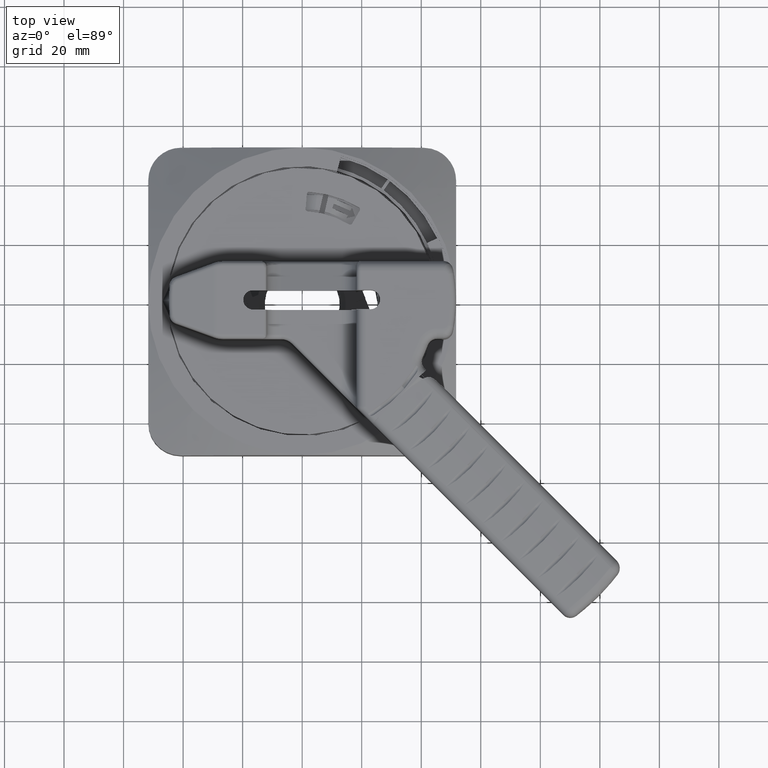
[diagram: clean part render]
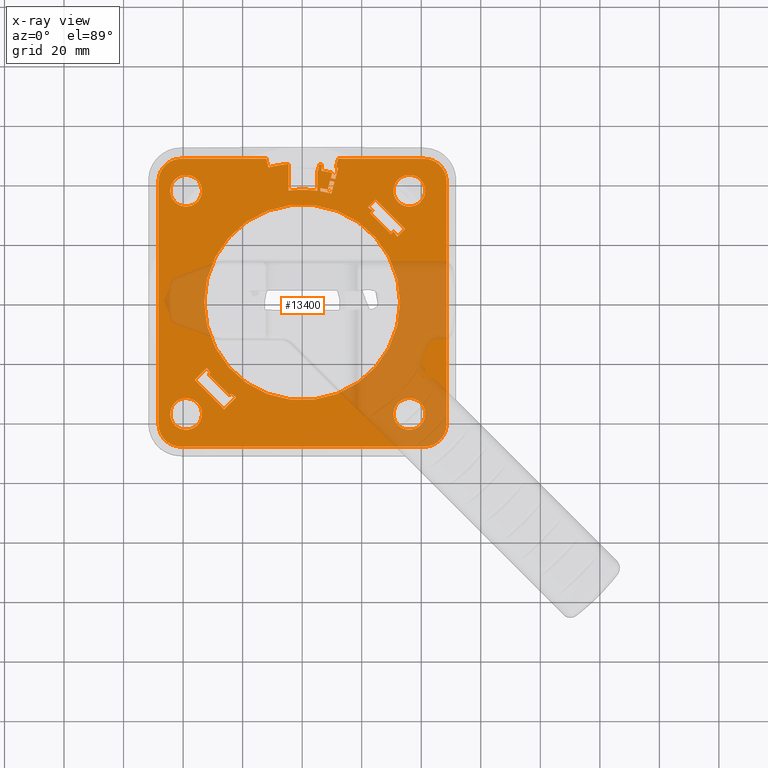
[diagram: x-ray — body ghosted, one internal face saturated and labeled with its STEP entity id]
A machine part, top view, then the same camera in x-ray: the body is ghosted and one INTERNAL B-rep face — a face not visible from any outside direction — is saturated and labeled: STEP entity #13400.
In plain terms, the highlighted planar face has unit normal (0, 0, 1).
Its self-contained STEP definition (entity closure, byte-faithful):
#11014=CARTESIAN_POINT('',(0.E0,0.E0,1.06E-1));
#11015=DIRECTION('',(0.E0,0.E0,-1.E0));
#11016=DIRECTION('',(-1.208053691275E-1,9.926762124630E-1,0.E0));
#11017=AXIS2_PLACEMENT_3D('',#11014,#11015,#11016);
#11022=CARTESIAN_POINT('',(0.E0,0.E0,1.06E-1));
#11023=DIRECTION('',(0.E0,0.E0,-1.E0));
#11024=DIRECTION('',(1.136363636363E-1,9.935224088361E-1,0.E0));
#11025=AXIS2_PLACEMENT_3D('',#11022,#11023,#11024);
#11030=DIRECTION('',(1.218693434058E-1,9.925461516412E-1,0.E0));
#11031=VECTOR('',#11030,7.999999999991E-2);
#11032=CARTESIAN_POINT('',(2.144900443930E-1,1.746881226889E0,1.06E-1));
#11033=LINE('',#11032,#11031);
#11037=CARTESIAN_POINT('',(0.E0,0.E0,1.06E-1));
#11038=DIRECTION('',(0.E0,0.E0,-1.E0));
#11039=DIRECTION('',(1.218693434052E-1,9.925461516413E-1,0.E0));
#11040=AXIS2_PLACEMENT_3D('',#11037,#11038,#11039);
#11045=DIRECTION('',(-1.218693434058E-1,-9.925461516412E-1,0.E0));
#11046=VECTOR('',#11045,8.001977017672E-2);
#11047=CARTESIAN_POINT('',(2.638884449984E-1,1.820978552481E0,1.06E-1));
#11048=LINE('',#11047,#11046);
#11052=CARTESIAN_POINT('',(0.E0,0.E0,1.06E-1));
#11053=DIRECTION('',(0.E0,0.E0,-1.E0));
#11054=DIRECTION('',(1.443957319020E-1,9.895200213278E-1,0.E0));
#11055=AXIS2_PLACEMENT_3D('',#11052,#11053,#11054);
#11060=DIRECTION('',(-2.588190451037E-1,-9.659258262888E-1,0.E0));
#11061=VECTOR('',#11060,7.115389865428E-2);
#11062=CARTESIAN_POINT('',(3.973011915539E-1,1.714570431096E0,1.06E-1));
#11063=LINE('',#11062,#11061);
#11067=DIRECTION('',(9.659258262863E-1,-2.588190451129E-1,0.E0));
#11068=VECTOR('',#11067,6.000000000018E-2);
#11069=CARTESIAN_POINT('',(3.788852074488E-1,1.645841042745E0,1.06E-1));
#11070=LINE('',#11069,#11068);
#11074=DIRECTION('',(2.588190451017E-1,9.659258262893E-1,0.E0));
#11075=VECTOR('',#11074,1.521769232515E-1);
#11076=CARTESIAN_POINT('',(4.368407570262E-1,1.630311900038E0,1.06E-1));
#11077=LINE('',#11076,#11075);
#11081=CARTESIAN_POINT('',(0.E0,0.E0,1.06E-1));
#11082=DIRECTION('',(0.E0,0.E0,1.E0));
#11083=DIRECTION('',(2.588190451025E-1,9.659258262891E-1,0.E0));
#11084=AXIS2_PLACEMENT_3D('',#11081,#11082,#11083);
#11089=DIRECTION('',(2.419218956E-1,9.702957262759E-1,0.E0));
#11090=VECTOR('',#11089,1.169999999998E-1);
#11091=CARTESIAN_POINT('',(4.451362879034E-1,1.785344136348E0,1.06E-1));
#11092=LINE('',#11091,#11090);
#11096=CARTESIAN_POINT('',(0.E0,0.E0,1.06E-1));
#11097=DIRECTION('',(0.E0,0.E0,1.E0));
#11098=DIRECTION('',(2.419218955997E-1,9.702957262760E-1,0.E0));
#11099=AXIS2_PLACEMENT_3D('',#11096,#11097,#11098);
#11104=CARTESIAN_POINT('',(1.61E0,1.6E0,1.06E-1));
#11105=DIRECTION('',(0.E0,0.E0,-1.E0));
#11106=DIRECTION('',(0.E0,1.E0,0.E0));
#11107=AXIS2_PLACEMENT_3D('',#11104,#11105,#11106);
#11112=CARTESIAN_POINT('',(1.61E0,-1.61E0,1.06E-1));
#11113=DIRECTION('',(0.E0,0.E0,-1.E0));
#11114=DIRECTION('',(1.E0,0.E0,0.E0));
#11115=AXIS2_PLACEMENT_3D('',#11112,#11113,#11114);
#11120=CARTESIAN_POINT('',(-1.6E0,-1.61E0,1.06E-1));
#11121=DIRECTION('',(0.E0,0.E0,-1.E0));
#11122=DIRECTION('',(0.E0,-1.E0,0.E0));
#11123=AXIS2_PLACEMENT_3D('',#11120,#11121,#11122);
#11128=CARTESIAN_POINT('',(-1.6E0,1.6E0,1.06E-1));
#11129=DIRECTION('',(0.E0,0.E0,-1.E0));
#11130=DIRECTION('',(-1.E0,0.E0,0.E0));
#11131=AXIS2_PLACEMENT_3D('',#11128,#11129,#11130);
#11136=CARTESIAN_POINT('',(0.E0,0.E0,1.06E-1));
#11137=DIRECTION('',(0.E0,0.E0,1.E0));
#11138=DIRECTION('',(-2.395915083350E-1,9.708737864078E-1,0.E0));
#11139=AXIS2_PLACEMENT_3D('',#11136,#11137,#11138);
#11144=DIRECTION('',(2.419218955989E-1,-9.702957262762E-1,0.E0));
#11145=VECTOR('',#11144,1.169999999999E-1);
#11146=CARTESIAN_POINT('',(-4.734411496885E-1,1.898868736322E0,1.06E-1));
#11147=LINE('',#11146,#11145);
#11151=CARTESIAN_POINT('',(0.E0,0.E0,1.06E-1));
#11152=DIRECTION('',(0.E0,0.E0,-1.E0));
#11153=DIRECTION('',(-2.419218955997E-1,9.702957262760E-1,0.E0));
#11154=AXIS2_PLACEMENT_3D('',#11151,#11152,#11153);
#11159=DIRECTION('',(2.588190451031E-1,9.659258262889E-1,0.E0));
#11160=VECTOR('',#11159,1.588230767486E-1);
#11161=CARTESIAN_POINT('',(3.856403772027E-1,1.439229481171E0,1.06E-1));
#11162=LINE('',#11161,#11160);
#11166=DIRECTION('',(-9.659258262891E-1,2.588190451025E-1,0.E0));
#11167=VECTOR('',#11166,5.999999999999E-2);
#11168=CARTESIAN_POINT('',(4.267468142672E-1,1.592640792813E0,1.06E-1));
#11169=LINE('',#11168,#11167);
#11173=DIRECTION('',(-2.588190451033E-1,-9.659258262889E-1,0.E0));
#11174=VECTOR('',#11173,1.199999999997E-1);
#11175=CARTESIAN_POINT('',(3.687912646898E-1,1.608169935519E0,1.06E-1));
#11176=LINE('',#11175,#11174);
#11180=CARTESIAN_POINT('',(0.E0,0.E0,1.06E-1));
#11181=DIRECTION('',(0.E0,0.E0,1.E0));
#11182=DIRECTION('',(2.207405093316E-1,9.753325727874E-1,0.E0));
#11183=AXIS2_PLACEMENT_3D('',#11180,#11181,#11182);
#11188=CARTESIAN_POINT('',(0.E0,0.E0,1.06E-1));
#11189=DIRECTION('',(0.E0,0.E0,-1.E0));
#11190=DIRECTION('',(1.610738255034E-1,9.869423603928E-1,0.E0));
#11191=AXIS2_PLACEMENT_3D('',#11188,#11189,#11190);
#11196=CARTESIAN_POINT('',(1.41765E0,1.4765E0,1.06E-1));
#11197=DIRECTION('',(0.E0,0.E0,1.E0));
#11198=DIRECTION('',(-1.E0,0.E0,0.E0));
#11199=AXIS2_PLACEMENT_3D('',#11196,#11197,#11198);
#11204=CARTESIAN_POINT('',(1.41765E0,1.4765E0,1.06E-1));
#11205=DIRECTION('',(0.E0,0.E0,1.E0));
#11206=DIRECTION('',(1.E0,0.E0,0.E0));
#11207=AXIS2_PLACEMENT_3D('',#11204,#11205,#11206);
#11212=CARTESIAN_POINT('',(-1.53535E0,1.4765E0,1.06E-1));
#11213=DIRECTION('',(0.E0,0.E0,1.E0));
#11214=DIRECTION('',(-1.E0,0.E0,0.E0));
#11215=AXIS2_PLACEMENT_3D('',#11212,#11213,#11214);
#11220=CARTESIAN_POINT('',(-1.53535E0,1.4765E0,1.06E-1));
#11221=DIRECTION('',(0.E0,0.E0,1.E0));
#11222=DIRECTION('',(1.E0,0.E0,0.E0));
#11223=AXIS2_PLACEMENT_3D('',#11220,#11221,#11222);
#11228=CARTESIAN_POINT('',(-1.53535E0,-1.4765E0,1.06E-1));
#11229=DIRECTION('',(0.E0,0.E0,1.E0));
#11230=DIRECTION('',(-1.E0,0.E0,0.E0));
#11231=AXIS2_PLACEMENT_3D('',#11228,#11229,#11230);
#11236=CARTESIAN_POINT('',(-1.53535E0,-1.4765E0,1.06E-1));
#11237=DIRECTION('',(0.E0,0.E0,1.E0));
#11238=DIRECTION('',(1.E0,0.E0,0.E0));
#11239=AXIS2_PLACEMENT_3D('',#11236,#11237,#11238);
#11244=CARTESIAN_POINT('',(1.41765E0,-1.4765E0,1.06E-1));
#11245=DIRECTION('',(0.E0,0.E0,1.E0));
#11246=DIRECTION('',(-1.E0,0.E0,0.E0));
#11247=AXIS2_PLACEMENT_3D('',#11244,#11245,#11246);
#11252=CARTESIAN_POINT('',(1.41765E0,-1.4765E0,1.06E-1));
#11253=DIRECTION('',(0.E0,0.E0,1.E0));
#11254=DIRECTION('',(1.E0,0.E0,0.E0));
#11255=AXIS2_PLACEMENT_3D('',#11252,#11253,#11254);
#11260=CARTESIAN_POINT('',(0.E0,0.E0,1.06E-1));
#11261=DIRECTION('',(0.E0,0.E0,1.E0));
#11262=DIRECTION('',(1.E0,0.E0,0.E0));
#11263=AXIS2_PLACEMENT_3D('',#11260,#11261,#11262);
#11268=CARTESIAN_POINT('',(0.E0,0.E0,1.06E-1));
#11269=DIRECTION('',(0.E0,0.E0,1.E0));
#11270=DIRECTION('',(-1.E0,0.E0,0.E0));
#11271=AXIS2_PLACEMENT_3D('',#11268,#11269,#11270);
#11276=DIRECTION('',(-7.071067811867E-1,7.071067811864E-1,0.E0));
#11277=VECTOR('',#11276,3.900000000002E-1);
#11278=CARTESIAN_POINT('',(-9.623723291949E-1,-1.231072906046E0,1.06E-1));
#11279=LINE('',#11278,#11277);
#11283=DIRECTION('',(7.071067811918E-1,7.071067811813E-1,0.E0));
#11284=VECTOR('',#11283,3.412821899837E-2);
#11285=CARTESIAN_POINT('',(-1.238143973858E0,-9.553012613831E-1,1.06E-1));
#11286=LINE('',#11285,#11284);
#11290=CARTESIAN_POINT('',(0.E0,0.E0,1.06E-1));
#11291=DIRECTION('',(0.E0,0.E0,-1.E0));
#11292=DIRECTION('',(-7.934716854733E-1,-6.086071675162E-1,0.E0));
#11293=AXIS2_PLACEMENT_3D('',#11290,#11291,#11292);
#11298=DIRECTION('',(-7.071067811877E-1,-7.071067811854E-1,0.E0));
#11299=VECTOR('',#11298,2.258391043506E-1);
#11300=CARTESIAN_POINT('',(-1.261592268041E0,-8.656124705769E-1,1.06E-1));
#11301=LINE('',#11300,#11299);
#11305=DIRECTION('',(7.071067811865E-1,-7.071067811865E-1,0.E0));
#11306=VECTOR('',#11305,5.500000000006E-1);
#11307=CARTESIAN_POINT('',(-1.421284630185E0,-1.025304832720E0,1.06E-1));
#11308=LINE('',#11307,#11306);
#11312=DIRECTION('',(7.071067811859E-1,7.071067811872E-1,0.E0));
#11313=VECTOR('',#11312,2.240119522385E-1);
#11314=CARTESIAN_POINT('',(-1.032375900532E0,-1.414213562373E0,1.06E-1));
#11315=LINE('',#11314,#11313);
#11319=CARTESIAN_POINT('',(0.E0,0.E0,1.06E-1));
#11320=DIRECTION('',(0.E0,0.E0,-1.E0));
#11321=DIRECTION('',(-5.712258366260E-1,-8.207929358681E-1,0.E0));
#11322=AXIS2_PLACEMENT_3D('',#11319,#11320,#11321);
#11327=DIRECTION('',(-7.071067811845E-1,-7.071067811886E-1,0.E0));
#11328=VECTOR('',#11327,3.284322285223E-2);
#11329=CARTESIAN_POINT('',(-9.391486636001E-1,-1.207849240451E0,1.06E-1));
#11330=LINE('',#11329,#11328);
#11334=DIRECTION('',(-7.071067811907E-1,-7.071067811824E-1,0.E0));
#11335=VECTOR('',#11334,4.587178100167E-2);
#11336=CARTESIAN_POINT('',(9.311689662996E-1,1.214011678774E0,1.06E-1));
#11337=LINE('',#11336,#11335);
#11341=DIRECTION('',(7.071067811864E-1,-7.071067811867E-1,0.E0));
#11342=VECTOR('',#11341,3.900000000003E-1);
#11343=CARTESIAN_POINT('',(8.987327188881E-1,1.181575431363E0,1.06E-1));
#11344=LINE('',#11343,#11342);
#11348=DIRECTION('',(7.071067811855E-1,7.071067811876E-1,0.E0));
#11349=VECTOR('',#11348,4.715677714779E-2);
#11350=CARTESIAN_POINT('',(1.174504363551E0,9.058037867E-1,1.06E-1));
#11351=LINE('',#11350,#11349);
#11355=CARTESIAN_POINT('',(0.E0,0.E0,1.06E-1));
#11356=DIRECTION('',(0.E0,0.E0,-1.E0));
#11357=DIRECTION('',(7.894439480072E-1,6.138226559478E-1,0.E0));
#11358=AXIS2_PLACEMENT_3D('',#11355,#11356,#11357);
#11363=DIRECTION('',(7.071067811865E-1,7.071067811865E-1,0.E0));
#11364=VECTOR('',#11363,1.449169458131E-1);
#11365=CARTESIAN_POINT('',(1.258708798691E0,8.698000690381E-1,1.06E-1));
#11366=LINE('',#11365,#11364);
#11370=DIRECTION('',(-7.071067811865E-1,7.071067811866E-1,0.E0));
#11371=VECTOR('',#11370,5.5E-1);
#11372=CARTESIAN_POINT('',(1.361180553784E0,9.722718241314E-1,1.06E-1));
#11373=LINE('',#11372,#11371);
#11377=DIRECTION('',(-7.071067811868E-1,-7.071067811863E-1,0.E0));
#11378=VECTOR('',#11377,1.449169458131E-1);
#11379=CARTESIAN_POINT('',(9.722718241314E-1,1.361180553784E0,1.06E-1));
#11380=LINE('',#11379,#11378);
#11384=CARTESIAN_POINT('',(0.E0,0.E0,1.06E-1));
#11385=DIRECTION('',(0.E0,0.E0,-1.E0));
#11386=DIRECTION('',(5.684967771490E-1,8.226854893404E-1,0.E0));
#11387=AXIS2_PLACEMENT_3D('',#11384,#11385,#11386);
#11406=DIRECTION('',(5.832330990418E-13,-1.E0,0.E0));
#11407=VECTOR('',#11406,4.035561109395E-2);
#11408=CARTESIAN_POINT('',(2.E-1,1.516871781002E0,1.06E-1));
#11409=LINE('',#11408,#11407);
#11570=DIRECTION('',(1.012113165169E-13,-1.E0,0.E0));
#11571=VECTOR('',#11570,2.317276585499E-1);
#11572=CARTESIAN_POINT('',(2.E-1,1.748599439552E0,1.06E-1));
#11573=LINE('',#11572,#11571);
#11605=DIRECTION('',(5.297483441809E-14,1.E0,0.E0));
#11606=VECTOR('',#11605,3.520869299279E-1);
#11607=CARTESIAN_POINT('',(-1.8E-1,1.479087556570E0,1.06E-1));
#11608=LINE('',#11607,#11606);
#11726=DIRECTION('',(-1.E0,0.E0,0.E0));
#11727=VECTOR('',#11726,1.141119418188E0);
#11728=CARTESIAN_POINT('',(1.61E0,1.9E0,1.06E-1));
#11729=LINE('',#11728,#11727);
#11761=DIRECTION('',(0.E0,1.E0,0.E0));
#11762=VECTOR('',#11761,3.21E0);
#11763=CARTESIAN_POINT('',(1.91E0,-1.61E0,1.06E-1));
#11764=LINE('',#11763,#11762);
#11789=DIRECTION('',(1.E0,0.E0,0.E0));
#11790=VECTOR('',#11789,3.21E0);
#11791=CARTESIAN_POINT('',(-1.6E0,-1.91E0,1.06E-1));
#11792=LINE('',#11791,#11790);
#11817=DIRECTION('',(0.E0,-1.E0,0.E0));
#11818=VECTOR('',#11817,3.21E0);
#11819=CARTESIAN_POINT('',(-1.9E0,1.6E0,1.06E-1));
#11820=LINE('',#11819,#11818);
#11838=DIRECTION('',(-1.E0,0.E0,0.E0));
#11839=VECTOR('',#11838,1.131119418188E0);
#11840=CARTESIAN_POINT('',(-4.688805818116E-1,1.9E0,1.06E-1));
#11841=LINE('',#11840,#11839);
#11993=DIRECTION('',(5.055795900808E-13,1.E0,0.E0));
#11994=VECTOR('',#11993,4.051511415059E-2);
#11995=CARTESIAN_POINT('',(2.4E-1,1.470544116985E0,1.06E-1));
#11996=LINE('',#11995,#11994);
#12773=CARTESIAN_POINT('',(1.62765E0,1.4765E0,1.06E-1));
#12774=VERTEX_POINT('',#12773);
#12775=CARTESIAN_POINT('',(1.20765E0,1.4765E0,1.06E-1));
#12776=VERTEX_POINT('',#12775);
#12777=CARTESIAN_POINT('',(3.856403772027E-1,1.439229481171E0,1.06E-1));
#12778=CARTESIAN_POINT('',(4.267468142672E-1,1.592640792813E0,1.06E-1));
#12779=VERTEX_POINT('',#12777);
#12780=VERTEX_POINT('',#12778);
#12781=CARTESIAN_POINT('',(2.4E-1,1.470544116985E0,1.06E-1));
#12782=VERTEX_POINT('',#12781);
#12783=CARTESIAN_POINT('',(-1.74535E0,1.4765E0,1.06E-1));
#12784=CARTESIAN_POINT('',(-1.32535E0,1.4765E0,1.06E-1));
#12785=VERTEX_POINT('',#12783);
#12786=VERTEX_POINT('',#12784);
#12787=CARTESIAN_POINT('',(-1.74535E0,-1.4765E0,1.06E-1));
#12788=CARTESIAN_POINT('',(-1.32535E0,-1.4765E0,1.06E-1));
#12789=VERTEX_POINT('',#12787);
#12790=VERTEX_POINT('',#12788);
#12791=CARTESIAN_POINT('',(1.20765E0,-1.4765E0,1.06E-1));
#12792=CARTESIAN_POINT('',(1.62765E0,-1.4765E0,1.06E-1));
#12793=VERTEX_POINT('',#12791);
#12794=VERTEX_POINT('',#12792);
#12795=CARTESIAN_POINT('',(1.2955E0,0.E0,1.06E-1));
#12796=CARTESIAN_POINT('',(-1.2955E0,0.E0,1.06E-1));
#12797=VERTEX_POINT('',#12795);
#12798=VERTEX_POINT('',#12796);
#12799=CARTESIAN_POINT('',(-9.623723291949E-1,-1.231072906046E0,1.06E-1));
#12800=CARTESIAN_POINT('',(-1.238143973858E0,-9.553012613831E-1,1.06E-1));
#12801=VERTEX_POINT('',#12799);
#12802=VERTEX_POINT('',#12800);
#12803=CARTESIAN_POINT('',(-1.214011678774E0,-9.311689662997E-1,1.06E-1));
#12804=VERTEX_POINT('',#12803);
#12805=CARTESIAN_POINT('',(-1.261592268041E0,-8.656124705769E-1,1.06E-1));
#12806=VERTEX_POINT('',#12805);
#12807=CARTESIAN_POINT('',(-1.421284630185E0,-1.025304832720E0,1.06E-1));
#12808=VERTEX_POINT('',#12807);
#12809=CARTESIAN_POINT('',(-1.032375900532E0,-1.414213562373E0,1.06E-1));
#12810=VERTEX_POINT('',#12809);
#12811=CARTESIAN_POINT('',(-8.739755300375E-1,-1.255813191878E0,1.06E-1));
#12812=VERTEX_POINT('',#12811);
#12813=CARTESIAN_POINT('',(-9.391486636001E-1,-1.207849240451E0,1.06E-1));
#12814=VERTEX_POINT('',#12813);
#12815=CARTESIAN_POINT('',(9.311689662996E-1,1.214011678774E0,1.06E-1));
#12816=CARTESIAN_POINT('',(8.987327188881E-1,1.181575431363E0,1.06E-1));
#12817=VERTEX_POINT('',#12815);
#12818=VERTEX_POINT('',#12816);
#12819=CARTESIAN_POINT('',(1.174504363551E0,9.058037867E-1,1.06E-1));
#12820=VERTEX_POINT('',#12819);
#12821=CARTESIAN_POINT('',(1.207849240451E0,9.391486636001E-1,1.06E-1));
#12822=VERTEX_POINT('',#12821);
#12823=CARTESIAN_POINT('',(1.258708798691E0,8.698000690381E-1,1.06E-1));
#12824=VERTEX_POINT('',#12823);
#12825=CARTESIAN_POINT('',(1.361180553784E0,9.722718241314E-1,1.06E-1));
#12826=VERTEX_POINT('',#12825);
#12827=CARTESIAN_POINT('',(9.722718241314E-1,1.361180553784E0,1.06E-1));
#12828=VERTEX_POINT('',#12827);
#12829=CARTESIAN_POINT('',(8.698000690381E-1,1.258708798691E0,1.06E-1));
#12830=VERTEX_POINT('',#12829);
#12831=CARTESIAN_POINT('',(-1.8E-1,1.479087556570E0,1.06E-1));
#12832=CARTESIAN_POINT('',(2.000000000001E-1,1.476516169908E0,1.06E-1));
#12833=VERTEX_POINT('',#12831);
#12834=VERTEX_POINT('',#12832);
#12835=CARTESIAN_POINT('',(2.E-1,1.748599439552E0,1.06E-1));
#12836=CARTESIAN_POINT('',(2.E-1,1.516871781002E0,1.06E-1));
#12837=VERTEX_POINT('',#12835);
#12838=VERTEX_POINT('',#12836);
#12839=CARTESIAN_POINT('',(2.242395918655E-1,1.826284919020E0,1.06E-1));
#12840=CARTESIAN_POINT('',(2.638884449984E-1,1.820978552481E0,1.06E-1));
#12841=VERTEX_POINT('',#12839);
#12842=VERTEX_POINT('',#12840);
#12843=CARTESIAN_POINT('',(4.368407570262E-1,1.630311900038E0,1.06E-1));
#12844=CARTESIAN_POINT('',(4.762270429886E-1,1.777303520372E0,1.06E-1));
#12845=VERTEX_POINT('',#12843);
#12846=VERTEX_POINT('',#12844);
#12847=CARTESIAN_POINT('',(4.451362879033E-1,1.785344136348E0,1.06E-1));
#12848=VERTEX_POINT('',#12847);
#12849=CARTESIAN_POINT('',(4.734411496886E-1,1.898868736322E0,1.06E-1));
#12850=VERTEX_POINT('',#12849);
#12851=CARTESIAN_POINT('',(4.688805818117E-1,1.9E0,1.06E-1));
#12852=VERTEX_POINT('',#12851);
#12853=CARTESIAN_POINT('',(1.61E0,1.9E0,1.06E-1));
#12854=VERTEX_POINT('',#12853);
#12855=CARTESIAN_POINT('',(1.91E0,1.6E0,1.06E-1));
#12856=VERTEX_POINT('',#12855);
#12857=CARTESIAN_POINT('',(1.91E0,-1.61E0,1.06E-1));
#12858=VERTEX_POINT('',#12857);
#12859=CARTESIAN_POINT('',(1.61E0,-1.91E0,1.06E-1));
#12860=VERTEX_POINT('',#12859);
#12861=CARTESIAN_POINT('',(-1.6E0,-1.91E0,1.06E-1));
#12862=VERTEX_POINT('',#12861);
#12863=CARTESIAN_POINT('',(-1.9E0,-1.61E0,1.06E-1));
#12864=VERTEX_POINT('',#12863);
#12865=CARTESIAN_POINT('',(-1.9E0,1.6E0,1.06E-1));
#12866=VERTEX_POINT('',#12865);
#12867=CARTESIAN_POINT('',(-1.6E0,1.9E0,1.06E-1));
#12868=VERTEX_POINT('',#12867);
#12869=CARTESIAN_POINT('',(-4.688805818116E-1,1.9E0,1.06E-1));
#12870=VERTEX_POINT('',#12869);
#12871=CARTESIAN_POINT('',(-4.734411496885E-1,1.898868736322E0,1.06E-1));
#12872=VERTEX_POINT('',#12871);
#12873=CARTESIAN_POINT('',(-4.451362879035E-1,1.785344136348E0,1.06E-1));
#12874=VERTEX_POINT('',#12873);
#12875=CARTESIAN_POINT('',(-1.8E-1,1.831174486498E0,1.06E-1));
#12876=VERTEX_POINT('',#12875);
#12879=CARTESIAN_POINT('',(3.687912646898E-1,1.608169935519E0,1.06E-1));
#12880=VERTEX_POINT('',#12879);
#12881=CARTESIAN_POINT('',(3.377329792775E-1,1.492258836365E0,1.06E-1));
#12882=VERTEX_POINT('',#12881);
#12883=CARTESIAN_POINT('',(2.4E-1,1.511059231136E0,1.06E-1));
#12884=VERTEX_POINT('',#12883);
#12899=CARTESIAN_POINT('',(2.144900443930E-1,1.746881226889E0,1.06E-1));
#12900=VERTEX_POINT('',#12899);
#12915=CARTESIAN_POINT('',(2.541364881475E-1,1.741555237537E0,1.06E-1));
#12916=VERTEX_POINT('',#12915);
#12917=CARTESIAN_POINT('',(3.973011915539E-1,1.714570431096E0,1.06E-1));
#12918=VERTEX_POINT('',#12917);
#12919=CARTESIAN_POINT('',(3.788852074488E-1,1.645841042745E0,1.06E-1));
#12920=VERTEX_POINT('',#12919);
#13265=CARTESIAN_POINT('',(5.E-3,-4.999999999968E-3,1.06E-1));
#13266=DIRECTION('',(0.E0,0.E0,1.E0));
#13267=DIRECTION('',(1.E0,0.E0,0.E0));
#13268=AXIS2_PLACEMENT_3D('',#13265,#13266,#13267);
#13269=PLANE('',#13268);
#13271=ORIENTED_EDGE('',*,*,#13270,.T.);
#13273=ORIENTED_EDGE('',*,*,#13272,.F.);
#13275=ORIENTED_EDGE('',*,*,#13274,.F.);
#13276=ORIENTED_EDGE('',*,*,#13234,.T.);
#13277=ORIENTED_EDGE('',*,*,#13252,.T.);
#13279=ORIENTED_EDGE('',*,*,#13278,.T.);
#13281=ORIENTED_EDGE('',*,*,#13280,.T.);
#13283=ORIENTED_EDGE('',*,*,#13282,.T.);
#13285=ORIENTED_EDGE('',*,*,#13284,.T.);
#13287=ORIENTED_EDGE('',*,*,#13286,.T.);
#13289=ORIENTED_EDGE('',*,*,#13288,.T.);
#13291=ORIENTED_EDGE('',*,*,#13290,.T.);
#13293=ORIENTED_EDGE('',*,*,#13292,.T.);
#13295=ORIENTED_EDGE('',*,*,#13294,.T.);
#13297=ORIENTED_EDGE('',*,*,#13296,.F.);
#13299=ORIENTED_EDGE('',*,*,#13298,.T.);
#13301=ORIENTED_EDGE('',*,*,#13300,.F.);
#13303=ORIENTED_EDGE('',*,*,#13302,.T.);
#13305=ORIENTED_EDGE('',*,*,#13304,.F.);
#13307=ORIENTED_EDGE('',*,*,#13306,.T.);
#13309=ORIENTED_EDGE('',*,*,#13308,.F.);
#13311=ORIENTED_EDGE('',*,*,#13310,.T.);
#13313=ORIENTED_EDGE('',*,*,#13312,.F.);
#13315=ORIENTED_EDGE('',*,*,#13314,.T.);
#13317=ORIENTED_EDGE('',*,*,#13316,.T.);
#13319=ORIENTED_EDGE('',*,*,#13318,.T.);
#13321=ORIENTED_EDGE('',*,*,#13320,.F.);
#13322=EDGE_LOOP('',(#13271,#13273,#13275,#13276,#13277,#13279,#13281,#13283,
#13285,#13287,#13289,#13291,#13293,#13295,#13297,#13299,#13301,#13303,#13305,
#13307,#13309,#13311,#13313,#13315,#13317,#13319,#13321));
#13323=FACE_OUTER_BOUND('',#13322,.F.);
#13325=ORIENTED_EDGE('',*,*,#13324,.T.);
#13327=ORIENTED_EDGE('',*,*,#13326,.T.);
#13329=ORIENTED_EDGE('',*,*,#13328,.T.);
#13331=ORIENTED_EDGE('',*,*,#13330,.T.);
#13333=ORIENTED_EDGE('',*,*,#13332,.F.);
#13335=ORIENTED_EDGE('',*,*,#13334,.T.);
#13336=EDGE_LOOP('',(#13325,#13327,#13329,#13331,#13333,#13335));
#13337=FACE_BOUND('',#13336,.F.);
#13339=ORIENTED_EDGE('',*,*,#13338,.T.);
#13341=ORIENTED_EDGE('',*,*,#13340,.T.);
#13342=EDGE_LOOP('',(#13339,#13341));
#13343=FACE_BOUND('',#13342,.F.);
#13345=ORIENTED_EDGE('',*,*,#13344,.T.);
#13347=ORIENTED_EDGE('',*,*,#13346,.T.);
#13348=EDGE_LOOP('',(#13345,#13347));
#13349=FACE_BOUND('',#13348,.F.);
#13351=ORIENTED_EDGE('',*,*,#13350,.T.);
#13353=ORIENTED_EDGE('',*,*,#13352,.T.);
#13354=EDGE_LOOP('',(#13351,#13353));
#13355=FACE_BOUND('',#13354,.F.);
#13357=ORIENTED_EDGE('',*,*,#13356,.T.);
#13359=ORIENTED_EDGE('',*,*,#13358,.T.);
#13360=EDGE_LOOP('',(#13357,#13359));
#13361=FACE_BOUND('',#13360,.F.);
#13363=ORIENTED_EDGE('',*,*,#13362,.T.);
#13365=ORIENTED_EDGE('',*,*,#13364,.T.);
#13366=EDGE_LOOP('',(#13363,#13365));
#13367=FACE_BOUND('',#13366,.F.);
#13369=ORIENTED_EDGE('',*,*,#13368,.T.);
#13371=ORIENTED_EDGE('',*,*,#13370,.T.);
#13372=ORIENTED_EDGE('',*,*,#13084,.T.);
#13374=ORIENTED_EDGE('',*,*,#13373,.T.);
#13376=ORIENTED_EDGE('',*,*,#13375,.T.);
#13378=ORIENTED_EDGE('',*,*,#13377,.T.);
#13379=ORIENTED_EDGE('',*,*,#13091,.T.);
#13381=ORIENTED_EDGE('',*,*,#13380,.T.);
#13382=EDGE_LOOP('',(#13369,#13371,#13372,#13374,#13376,#13378,#13379,#13381));
#13383=FACE_BOUND('',#13382,.F.);
#13385=ORIENTED_EDGE('',*,*,#13384,.T.);
#13387=ORIENTED_EDGE('',*,*,#13386,.T.);
#13389=ORIENTED_EDGE('',*,*,#13388,.T.);
#13390=ORIENTED_EDGE('',*,*,#13056,.T.);
#13392=ORIENTED_EDGE('',*,*,#13391,.T.);
#13394=ORIENTED_EDGE('',*,*,#13393,.T.);
#13396=ORIENTED_EDGE('',*,*,#13395,.T.);
#13397=ORIENTED_EDGE('',*,*,#13064,.T.);
#13398=EDGE_LOOP('',(#13385,#13387,#13389,#13390,#13392,#13394,#13396,#13397));
#13399=FACE_BOUND('',#13398,.F.);
#13400=ADVANCED_FACE('',(#13323,#13337,#13343,#13349,#13355,#13361,#13367,
#13383,#13399),#13269,.T.);
#11018=CIRCLE('',#11017,1.49E0);
#11026=CIRCLE('',#11025,1.76E0);
#11041=CIRCLE('',#11040,1.84E0);
#11056=CIRCLE('',#11055,1.76E0);
#11085=CIRCLE('',#11084,1.84E0);
#11100=CIRCLE('',#11099,1.957E0);
#11108=CIRCLE('',#11107,3.E-1);
#11116=CIRCLE('',#11115,3.E-1);
#11124=CIRCLE('',#11123,3.E-1);
#11132=CIRCLE('',#11131,3.E-1);
#11140=CIRCLE('',#11139,1.957E0);
#11155=CIRCLE('',#11154,1.84E0);
#11184=CIRCLE('',#11183,1.53E0);
#11192=CIRCLE('',#11191,1.49E0);
#11200=CIRCLE('',#11199,2.1E-1);
#11208=CIRCLE('',#11207,2.1E-1);
#11216=CIRCLE('',#11215,2.1E-1);
#11224=CIRCLE('',#11223,2.1E-1);
#11232=CIRCLE('',#11231,2.1E-1);
#11240=CIRCLE('',#11239,2.1E-1);
#11248=CIRCLE('',#11247,2.1E-1);
#11256=CIRCLE('',#11255,2.1E-1);
#11264=CIRCLE('',#11263,1.2955E0);
#11272=CIRCLE('',#11271,1.2955E0);
#11294=CIRCLE('',#11293,1.53E0);
#11323=CIRCLE('',#11322,1.53E0);
#11359=CIRCLE('',#11358,1.53E0);
#11388=CIRCLE('',#11387,1.53E0);
#13056=EDGE_CURVE('',#12822,#12824,#11359,.T.);
#13064=EDGE_CURVE('',#12830,#12817,#11388,.T.);
#13084=EDGE_CURVE('',#12804,#12806,#11294,.T.);
#13091=EDGE_CURVE('',#12812,#12814,#11323,.T.);
#13234=EDGE_CURVE('',#12837,#12900,#11026,.T.);
#13252=EDGE_CURVE('',#12900,#12841,#11033,.T.);
#13270=EDGE_CURVE('',#12833,#12834,#11018,.T.);
#13272=EDGE_CURVE('',#12838,#12834,#11409,.T.);
#13274=EDGE_CURVE('',#12837,#12838,#11573,.T.);
#13278=EDGE_CURVE('',#12841,#12842,#11041,.T.);
#13280=EDGE_CURVE('',#12842,#12916,#11048,.T.);
#13282=EDGE_CURVE('',#12916,#12918,#11056,.T.);
#13284=EDGE_CURVE('',#12918,#12920,#11063,.T.);
#13286=EDGE_CURVE('',#12920,#12845,#11070,.T.);
#13288=EDGE_CURVE('',#12845,#12846,#11077,.T.);
#13290=EDGE_CURVE('',#12846,#12848,#11085,.T.);
#13292=EDGE_CURVE('',#12848,#12850,#11092,.T.);
#13294=EDGE_CURVE('',#12850,#12852,#11100,.T.);
#13296=EDGE_CURVE('',#12854,#12852,#11729,.T.);
#13298=EDGE_CURVE('',#12854,#12856,#11108,.T.);
#13300=EDGE_CURVE('',#12858,#12856,#11764,.T.);
#13302=EDGE_CURVE('',#12858,#12860,#11116,.T.);
#13304=EDGE_CURVE('',#12862,#12860,#11792,.T.);
#13306=EDGE_CURVE('',#12862,#12864,#11124,.T.);
#13308=EDGE_CURVE('',#12866,#12864,#11820,.T.);
#13310=EDGE_CURVE('',#12866,#12868,#11132,.T.);
#13312=EDGE_CURVE('',#12870,#12868,#11841,.T.);
#13314=EDGE_CURVE('',#12870,#12872,#11140,.T.);
#13316=EDGE_CURVE('',#12872,#12874,#11147,.T.);
#13318=EDGE_CURVE('',#12874,#12876,#11155,.T.);
#13320=EDGE_CURVE('',#12833,#12876,#11608,.T.);
#13324=EDGE_CURVE('',#12779,#12780,#11162,.T.);
#13326=EDGE_CURVE('',#12780,#12880,#11169,.T.);
#13328=EDGE_CURVE('',#12880,#12882,#11176,.T.);
#13330=EDGE_CURVE('',#12882,#12884,#11184,.T.);
#13332=EDGE_CURVE('',#12782,#12884,#11996,.T.);
#13334=EDGE_CURVE('',#12782,#12779,#11192,.T.);
#13338=EDGE_CURVE('',#12776,#12774,#11200,.T.);
#13340=EDGE_CURVE('',#12774,#12776,#11208,.T.);
#13344=EDGE_CURVE('',#12785,#12786,#11216,.T.);
#13346=EDGE_CURVE('',#12786,#12785,#11224,.T.);
#13350=EDGE_CURVE('',#12789,#12790,#11232,.T.);
#13352=EDGE_CURVE('',#12790,#12789,#11240,.T.);
#13356=EDGE_CURVE('',#12793,#12794,#11248,.T.);
#13358=EDGE_CURVE('',#12794,#12793,#11256,.T.);
#13362=EDGE_CURVE('',#12797,#12798,#11264,.T.);
#13364=EDGE_CURVE('',#12798,#12797,#11272,.T.);
#13368=EDGE_CURVE('',#12801,#12802,#11279,.T.);
#13370=EDGE_CURVE('',#12802,#12804,#11286,.T.);
#13373=EDGE_CURVE('',#12806,#12808,#11301,.T.);
#13375=EDGE_CURVE('',#12808,#12810,#11308,.T.);
#13377=EDGE_CURVE('',#12810,#12812,#11315,.T.);
#13380=EDGE_CURVE('',#12814,#12801,#11330,.T.);
#13384=EDGE_CURVE('',#12817,#12818,#11337,.T.);
#13386=EDGE_CURVE('',#12818,#12820,#11344,.T.);
#13388=EDGE_CURVE('',#12820,#12822,#11351,.T.);
#13391=EDGE_CURVE('',#12824,#12826,#11366,.T.);
#13393=EDGE_CURVE('',#12826,#12828,#11373,.T.);
#13395=EDGE_CURVE('',#12828,#12830,#11380,.T.);